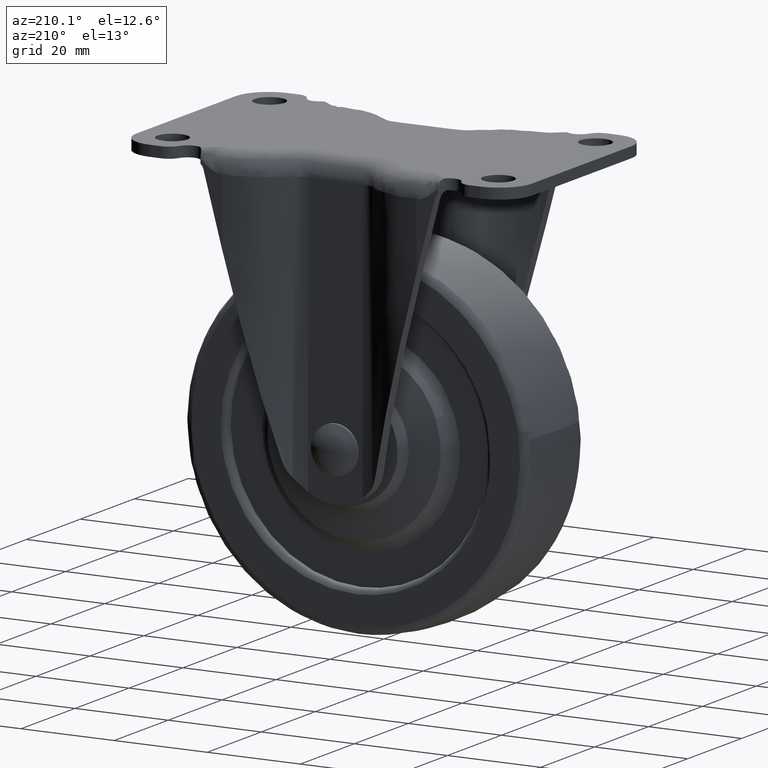
[diagram: clean part render]
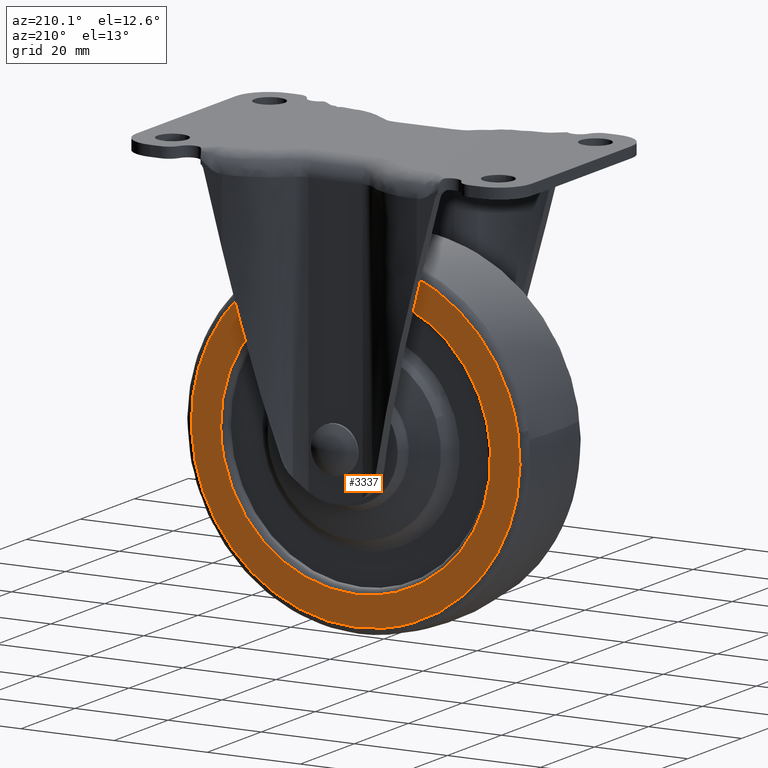
[diagram: same view with one face highlighted and labeled with its STEP entity id]
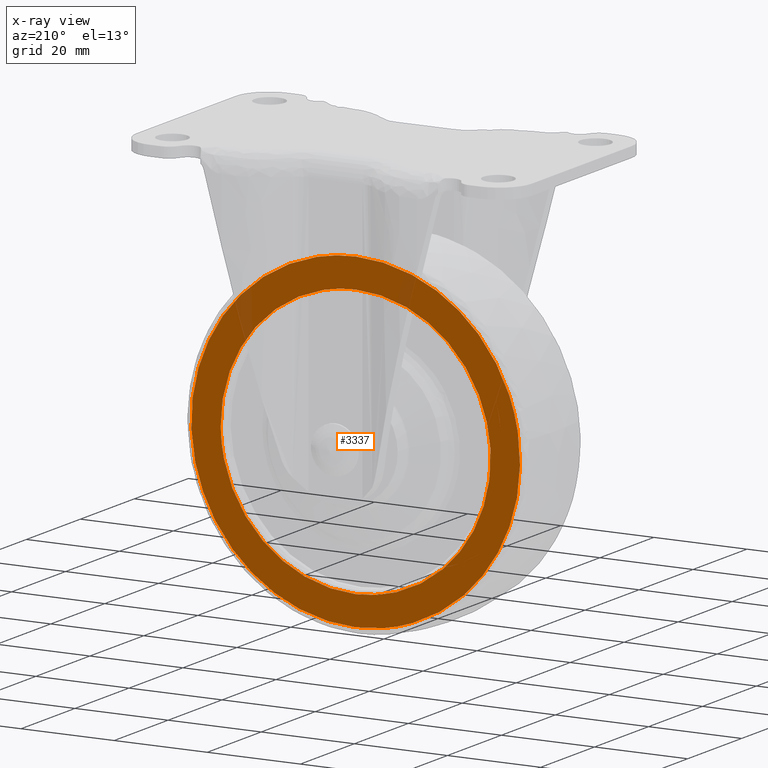
[diagram: x-ray of the same camera — body ghosted, the highlighted face saturated]
A machine part, auxiliary view. The second image highlights one B-rep face of the part: STEP entity #3337.
The next image is the same camera in x-ray: the body ghosted, the highlighted face saturated — about 3% of this face is hidden behind the body in this view.
In plain terms, the highlighted face is a freeform B-spline surface patch.
Its self-contained STEP definition (entity closure, byte-faithful):
#2559=CARTESIAN_POINT('',(34.448118242107142,10.499999999999970,-63.224479345858128));
#2560=VERTEX_POINT('',#2559);
#2574=CARTESIAN_POINT('',(0.0,10.500000000000000,-20.196453000000101));
#2575=VERTEX_POINT('',#2574);
#2576=CARTESIAN_POINT('',(34.448118242107135,10.499999999999972,-63.224479345858121));
#2577=CARTESIAN_POINT('',(35.303546999999902,10.500000000000000,-59.409605866081890));
#2578=CARTESIAN_POINT('',(35.303546999999902,10.500000000000000,-55.500000000000000));
#2579=CARTESIAN_POINT('',(35.303546999999895,10.500000000000000,-20.196453000000098));
#2580=CARTESIAN_POINT('',(0.0,10.500000000000000,-20.196453000000101));
#2588=(BOUNDED_CURVE()B_SPLINE_CURVE(2,(#2576,#2577,#2578,#2579,#2580),.UNSPECIFIED.,.F.,.U.)B_SPLINE_CURVE_WITH_KNOTS((3,2,3),(0.212563823275250,0.250000000000000,0.500000000000000),.UNSPECIFIED.)CURVE()GEOMETRIC_REPRESENTATION_ITEM()RATIONAL_B_SPLINE_CURVE((0.925416950446276,0.956140790796074,1.0,0.707106781186547,1.0))REPRESENTATION_ITEM(''));
#2589=EDGE_CURVE('',#2560,#2575,#2588,.T.);
#2591=CARTESIAN_POINT('',(-34.833513611736031,10.499999999999970,-49.758331193474838));
#2592=VERTEX_POINT('',#2591);
#2593=CARTESIAN_POINT('',(0.0,10.500000000000000,-20.196453000000101));
#2594=CARTESIAN_POINT('',(-29.960777659754942,10.500000000000002,-20.196453000000094));
#2595=CARTESIAN_POINT('',(-34.833513611736031,10.499999999999972,-49.758331193474852));
#2603=(BOUNDED_CURVE()B_SPLINE_CURVE(2,(#2593,#2594,#2595),.UNSPECIFIED.,.F.,.U.)B_SPLINE_CURVE_WITH_KNOTS((3,3),(0.500000000000000,0.722006108798498),.UNSPECIFIED.)CURVE()GEOMETRIC_REPRESENTATION_ITEM()RATIONAL_B_SPLINE_CURVE((1.0,0.739903664791033,0.941751131922007))REPRESENTATION_ITEM(''));
#2604=EDGE_CURVE('',#2575,#2592,#2603,.T.);
#2706=CARTESIAN_POINT('',(0.0,10.500000000000000,-90.803546999999895));
#2707=VERTEX_POINT('',#2706);
#2708=CARTESIAN_POINT('',(-34.833513611736038,10.499999999999972,-49.758331193474845));
#2709=CARTESIAN_POINT('',(-35.303546999999902,10.499999999999998,-52.609926295923103));
#2710=CARTESIAN_POINT('',(-35.303546999999902,10.500000000000000,-55.500000000000000));
#2711=CARTESIAN_POINT('',(-35.303546999999895,10.500000000000000,-90.803546999999895));
#2712=CARTESIAN_POINT('',(0.0,10.500000000000000,-90.803546999999895));
#2720=(BOUNDED_CURVE()B_SPLINE_CURVE(2,(#2708,#2709,#2710,#2711,#2712),.UNSPECIFIED.,.F.,.U.)B_SPLINE_CURVE_WITH_KNOTS((3,2,3),(0.722006108798498,0.750000000000000,1.0),.UNSPECIFIED.)CURVE()GEOMETRIC_REPRESENTATION_ITEM()RATIONAL_B_SPLINE_CURVE((0.941751131922007,0.967203116395514,1.0,0.707106781186547,1.0))REPRESENTATION_ITEM(''));
#2721=EDGE_CURVE('',#2592,#2707,#2720,.T.);
#2723=CARTESIAN_POINT('',(0.0,10.500000000000000,-90.803546999999895));
#2724=CARTESIAN_POINT('',(28.263921550036002,10.500000000000000,-90.803546999999909));
#2725=CARTESIAN_POINT('',(34.448118242107135,10.499999999999972,-63.224479345858121));
#2733=(BOUNDED_CURVE()B_SPLINE_CURVE(2,(#2723,#2724,#2725),.UNSPECIFIED.,.F.,.U.)B_SPLINE_CURVE_WITH_KNOTS((3,3),(0.0,0.212563823275250),.UNSPECIFIED.)CURVE()GEOMETRIC_REPRESENTATION_ITEM()RATIONAL_B_SPLINE_CURVE((1.0,0.750965990390473,0.925416950446276))REPRESENTATION_ITEM(''));
#2734=EDGE_CURVE('',#2707,#2560,#2733,.T.);
#2769=CARTESIAN_POINT('',(-28.929404541289291,10.500000000000000,-53.477735704300663));
#2770=VERTEX_POINT('',#2769);
#2771=CARTESIAN_POINT('',(0.0,10.500000000000000,-84.500000000000000));
#2772=VERTEX_POINT('',#2771);
#2773=CARTESIAN_POINT('',(-28.929404541289291,10.499999999999996,-53.477735704300670));
#2774=CARTESIAN_POINT('',(-29.000000000000004,10.500000000000005,-54.487635639616052));
#2775=CARTESIAN_POINT('',(-29.0,10.500000000000000,-55.500000000000000));
#2776=CARTESIAN_POINT('',(-29.0,10.500000000000002,-84.500000000000000));
#2777=CARTESIAN_POINT('',(0.0,10.500000000000000,-84.500000000000000));
#2785=(BOUNDED_CURVE()B_SPLINE_CURVE(2,(#2773,#2774,#2775,#2776,#2777),.UNSPECIFIED.,.F.,.U.)B_SPLINE_CURVE_WITH_KNOTS((3,2,3),(0.737833686534929,0.750000000000000,1.0),.UNSPECIFIED.)CURVE()GEOMETRIC_REPRESENTATION_ITEM()RATIONAL_B_SPLINE_CURVE((0.972879876386633,0.985746277152488,1.0,0.707106781186548,1.0))REPRESENTATION_ITEM(''));
#2786=EDGE_CURVE('',#2770,#2772,#2785,.T.);
#2805=CARTESIAN_POINT('',(28.997710281089180,10.500000000000000,-55.864415156671662));
#2806=VERTEX_POINT('',#2805);
#2820=CARTESIAN_POINT('',(0.0,10.500000000000000,-84.500000000000000));
#2821=CARTESIAN_POINT('',(28.637845967184237,10.500000000000000,-84.500000000000000));
#2822=CARTESIAN_POINT('',(28.997710281089176,10.499999999999998,-55.864415156671662));
#2830=(BOUNDED_CURVE()B_SPLINE_CURVE(2,(#2820,#2821,#2822),.UNSPECIFIED.,.F.,.U.)B_SPLINE_CURVE_WITH_KNOTS((3,3),(0.0,0.247784295920943),.UNSPECIFIED.)CURVE()GEOMETRIC_REPRESENTATION_ITEM()RATIONAL_B_SPLINE_CURVE((1.0,0.709702639985160,0.994854295642205))REPRESENTATION_ITEM(''));
#2831=EDGE_CURVE('',#2772,#2806,#2830,.T.);
#2859=CARTESIAN_POINT('',(0.0,10.500000000000000,-26.500000000000000));
#2860=VERTEX_POINT('',#2859);
#2861=CARTESIAN_POINT('',(0.0,10.500000000000000,-26.500000000000000));
#2862=CARTESIAN_POINT('',(-27.043568570699659,10.500000000000002,-26.500000000000011));
#2863=CARTESIAN_POINT('',(-28.929404541289294,10.500000000000004,-53.477735704300663));
#2871=(BOUNDED_CURVE()B_SPLINE_CURVE(2,(#2861,#2862,#2863),.UNSPECIFIED.,.F.,.U.)B_SPLINE_CURVE_WITH_KNOTS((3,3),(0.500000000000000,0.737833686534930),.UNSPECIFIED.)CURVE()GEOMETRIC_REPRESENTATION_ITEM()RATIONAL_B_SPLINE_CURVE((1.0,0.721360504034059,0.972879876386633))REPRESENTATION_ITEM(''));
#2872=EDGE_CURVE('',#2860,#2770,#2871,.T.);
#2874=CARTESIAN_POINT('',(28.997710281089173,10.500000000000000,-55.864415156671654));
#2875=CARTESIAN_POINT('',(28.999999999999993,10.500000000000002,-55.682214771829564));
#2876=CARTESIAN_POINT('',(29.0,10.500000000000000,-55.500000000000000));
#2877=CARTESIAN_POINT('',(29.0,10.500000000000002,-26.500000000000000));
#2878=CARTESIAN_POINT('',(0.0,10.500000000000000,-26.500000000000000));
#2886=(BOUNDED_CURVE()B_SPLINE_CURVE(2,(#2874,#2875,#2876,#2877,#2878),.UNSPECIFIED.,.F.,.U.)B_SPLINE_CURVE_WITH_KNOTS((3,2,3),(0.247784295920943,0.250000000000000,0.500000000000000),.UNSPECIFIED.)CURVE()GEOMETRIC_REPRESENTATION_ITEM()RATIONAL_B_SPLINE_CURVE((0.994854295642205,0.997404141201387,1.0,0.707106781186548,1.0))REPRESENTATION_ITEM(''));
#2887=EDGE_CURVE('',#2806,#2860,#2886,.T.);
#3320=CARTESIAN_POINT('',(-38.828207047633853,10.500000000000000,-16.669628791550359));
#3321=CARTESIAN_POINT('',(-38.828207047633853,10.500000000000000,-94.330373102279466));
#3322=CARTESIAN_POINT('',(38.824103750401036,10.500000000000000,-16.669628791550359));
#3323=CARTESIAN_POINT('',(38.824103750401036,10.500000000000000,-94.330373102279466));
#3324=B_SPLINE_SURFACE_WITH_KNOTS('',1,1,((#3320,#3322),(#3321,#3323)),.UNSPECIFIED.,.F.,.F.,.U.,(2,2),(2,2),(0.0,77.660744310729100),(0.0,77.652310798034890),.UNSPECIFIED.);
#3325=ORIENTED_EDGE('',*,*,#2721,.F.);
#3326=ORIENTED_EDGE('',*,*,#2604,.F.);
#3327=ORIENTED_EDGE('',*,*,#2589,.F.);
#3328=ORIENTED_EDGE('',*,*,#2734,.F.);
#3329=EDGE_LOOP('',(#3325,#3326,#3327,#3328));
#3330=FACE_OUTER_BOUND('',#3329,.T.);
#3331=ORIENTED_EDGE('',*,*,#2831,.T.);
#3332=ORIENTED_EDGE('',*,*,#2887,.T.);
#3333=ORIENTED_EDGE('',*,*,#2872,.T.);
#3334=ORIENTED_EDGE('',*,*,#2786,.T.);
#3335=EDGE_LOOP('',(#3331,#3332,#3333,#3334));
#3336=FACE_BOUND('',#3335,.T.);
#3337=ADVANCED_FACE('',(#3330,#3336),#3324,.F.);